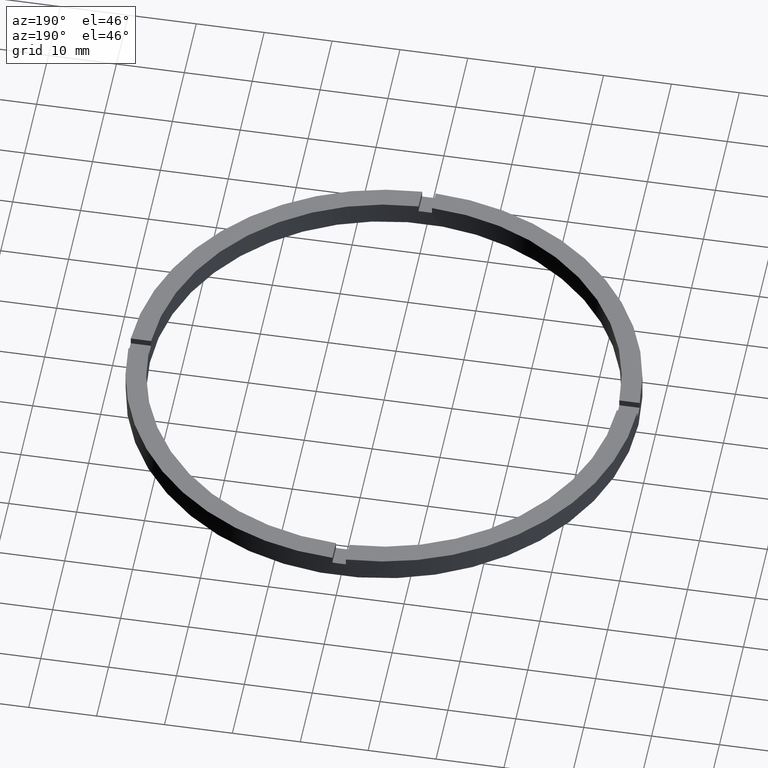
[diagram: clean part render]
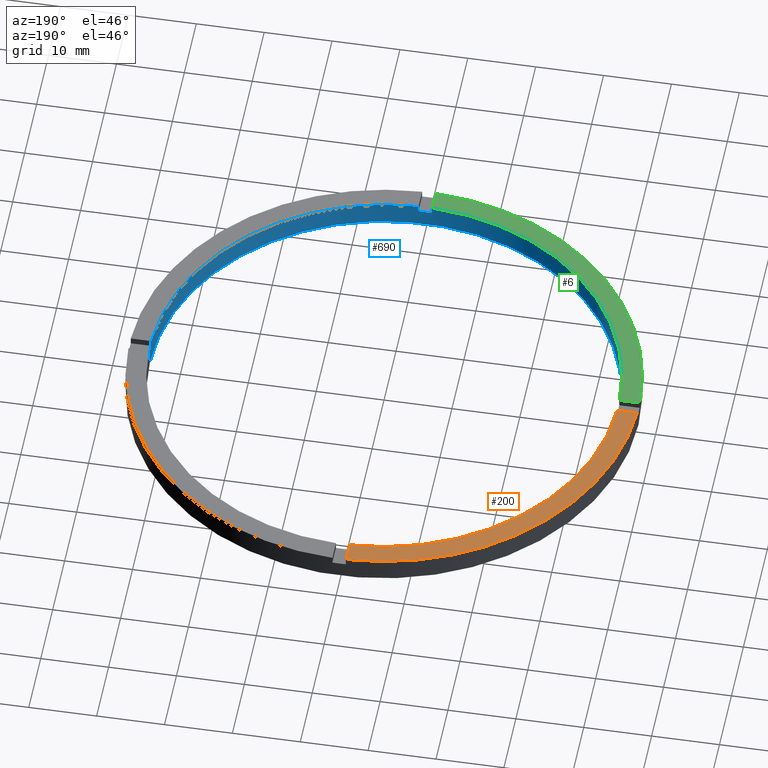
[diagram: same view with three faces highlighted in distinct colors, each labeled with its STEP entity id]
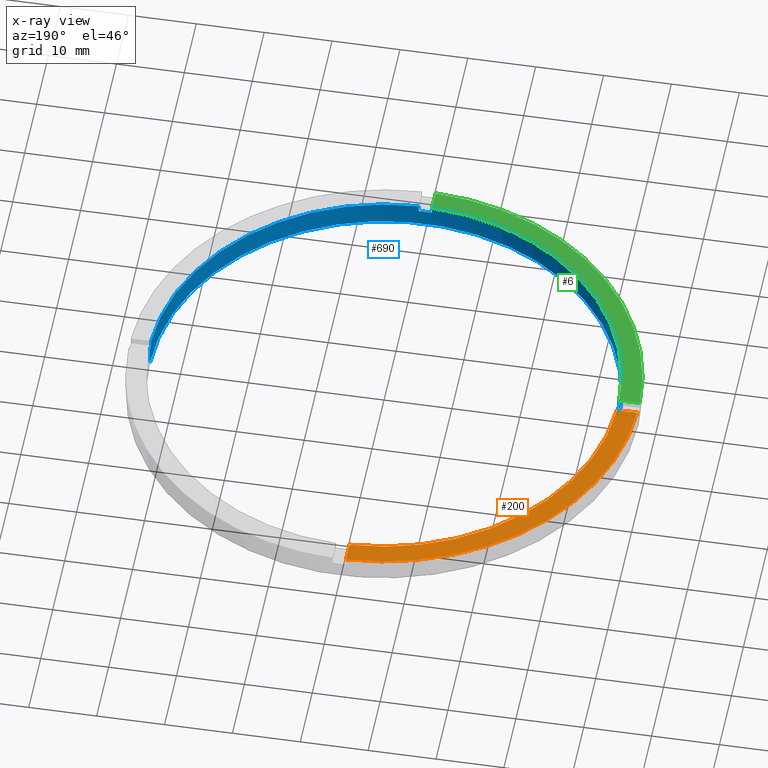
[diagram: x-ray of the same camera — body ghosted, the three highlighted faces saturated]
A machine part, auxiliary view with three faces highlighted in distinct colors.
The next image is the same camera in x-ray (body ghosted, the three faces saturated) — at least one of them is partly hidden behind the body in this view.
Their STEP definitions:

[orange] entity #200 — the highlighted planar face has unit normal (0, 0, 1).
#54 = VECTOR ( 'NONE', #67, 1000.000000000000000 ) ;
#67 = DIRECTION ( 'NONE',  ( -0.000000000000000000, -1.000000000000000000, -0.000000000000000000 ) ) ;
#82 = EDGE_CURVE ( 'NONE', #510, #342, #322, .T. ) ;
#90 = CARTESIAN_POINT ( 'NONE',  ( -1.000000000000025313, 37.48666429545312440, 3.500000000000000000 ) ) ;
#100 = FACE_OUTER_BOUND ( 'NONE', #405, .T. ) ;
#121 = DIRECTION ( 'NONE',  ( 1.000000000000000000, 0.000000000000000000, 0.000000000000000000 ) ) ;
#128 = VERTEX_POINT ( 'NONE', #396 ) ;
#174 = ORIENTED_EDGE ( 'NONE', *, *, #550, .F. ) ;
#187 = CARTESIAN_POINT ( 'NONE',  ( -27.50000000000019185, 0.9999999999999744649, 3.500000000000000000 ) ) ;
#200 = ADVANCED_FACE ( 'NONE', ( #100 ), #378, .T. ) ;
#205 = AXIS2_PLACEMENT_3D ( 'NONE', #573, #413, #121 ) ;
#238 = CARTESIAN_POINT ( 'NONE',  ( 0.000000000000000000, 0.000000000000000000, 3.500000000000000000 ) ) ;
#278 = CIRCLE ( 'NONE', #692, 37.50000000000000711 ) ;
#288 = LINE ( 'NONE', #187, #296 ) ;
#296 = VECTOR ( 'NONE', #477, 1000.000000000000000 ) ;
#321 = ORIENTED_EDGE ( 'NONE', *, *, #714, .F. ) ;
#322 = LINE ( 'NONE', #566, #54 ) ;
#342 = VERTEX_POINT ( 'NONE', #429 ) ;
#362 = CIRCLE ( 'NONE', #205, 34.49999999999999289 ) ;
#378 = PLANE ( 'NONE',  #480 ) ;
#396 = CARTESIAN_POINT ( 'NONE',  ( -37.48666429545313150, 0.9999999999999724665, 3.500000000000000000 ) ) ;
#405 = EDGE_LOOP ( 'NONE', ( #489, #418, #174, #321 ) ) ;
#413 = DIRECTION ( 'NONE',  ( 0.000000000000000000, 0.000000000000000000, 1.000000000000000000 ) ) ;
#418 = ORIENTED_EDGE ( 'NONE', *, *, #463, .T. ) ;
#429 = CARTESIAN_POINT ( 'NONE',  ( -1.000000000000025313, 34.48550420104075442, 3.500000000000000000 ) ) ;
#432 = CARTESIAN_POINT ( 'NONE',  ( -34.48550420104076153, 0.9999999999999731326, 3.500000000000000000 ) ) ;
#457 = DIRECTION ( 'NONE',  ( 1.000000000000000000, 0.000000000000000000, 0.000000000000000000 ) ) ;
#463 = EDGE_CURVE ( 'NONE', #510, #128, #278, .T. ) ;
#477 = DIRECTION ( 'NONE',  ( -1.000000000000000000, -1.951563910473907735E-16, 0.000000000000000000 ) ) ;
#480 = AXIS2_PLACEMENT_3D ( 'NONE', #666, #767, #763 ) ;
#489 = ORIENTED_EDGE ( 'NONE', *, *, #82, .F. ) ;
#491 = VERTEX_POINT ( 'NONE', #432 ) ;
#510 = VERTEX_POINT ( 'NONE', #90 ) ;
#550 = EDGE_CURVE ( 'NONE', #491, #128, #288, .T. ) ;
#564 = DIRECTION ( 'NONE',  ( 0.000000000000000000, 0.000000000000000000, 1.000000000000000000 ) ) ;
#566 = CARTESIAN_POINT ( 'NONE',  ( -1.000000000000025313, 27.50000000000000355, 3.500000000000000000 ) ) ;
#573 = CARTESIAN_POINT ( 'NONE',  ( 0.000000000000000000, 0.000000000000000000, 3.500000000000000000 ) ) ;
#666 = CARTESIAN_POINT ( 'NONE',  ( 0.000000000000000000, 0.000000000000000000, 3.500000000000000000 ) ) ;
#692 = AXIS2_PLACEMENT_3D ( 'NONE', #238, #564, #457 ) ;
#714 = EDGE_CURVE ( 'NONE', #342, #491, #362, .T. ) ;
#763 = DIRECTION ( 'NONE',  ( 1.000000000000000000, 0.000000000000000000, -0.000000000000000000 ) ) ;
#767 = DIRECTION ( 'NONE',  ( 0.000000000000000000, 0.000000000000000000, 1.000000000000000000 ) ) ;

[blue] entity #690 — the highlighted cylindrical surface (partial cylindrical patch) has radius 34.5 mm, axis along (-0, -0, -1).
#10 = CIRCLE ( 'NONE', #768, 34.49999999999999289 ) ;
#14 = CIRCLE ( 'NONE', #421, 34.49999999999999289 ) ;
#19 = CARTESIAN_POINT ( 'NONE',  ( 0.9999999999998397948, -34.48550420104076153, 3.500000000000000000 ) ) ;
#21 = CARTESIAN_POINT ( 'NONE',  ( -1.000000000000160316, -34.48550420104075442, 3.500000000000000000 ) ) ;
#30 = CARTESIAN_POINT ( 'NONE',  ( 0.000000000000000000, 0.000000000000000000, 3.500000000000000000 ) ) ;
#36 = EDGE_CURVE ( 'NONE', #760, #422, #591, .T. ) ;
#38 = CARTESIAN_POINT ( 'NONE',  ( 34.48550420104075442, -1.000000000000157652, 2.500000000000000000 ) ) ;
#40 = EDGE_CURVE ( 'NONE', #493, #231, #58, .T. ) ;
#48 = AXIS2_PLACEMENT_3D ( 'NONE', #709, #285, #222 ) ;
#52 = CARTESIAN_POINT ( 'NONE',  ( 0.000000000000000000, 0.000000000000000000, 2.500000000000000000 ) ) ;
#53 = VECTOR ( 'NONE', #619, 1000.000000000000000 ) ;
#57 = CARTESIAN_POINT ( 'NONE',  ( 34.48550420104075442, -1.000000000000157652, 3.500000000000000000 ) ) ;
#58 = LINE ( 'NONE', #397, #53 ) ;
#63 = ORIENTED_EDGE ( 'NONE', *, *, #696, .T. ) ;
#69 = ORIENTED_EDGE ( 'NONE', *, *, #188, .T. ) ;
#70 = FACE_OUTER_BOUND ( 'NONE', #420, .T. ) ;
#71 = VERTEX_POINT ( 'NONE', #195 ) ;
#73 = CARTESIAN_POINT ( 'NONE',  ( 0.000000000000000000, 0.000000000000000000, 2.500000000000000000 ) ) ;
#83 = CYLINDRICAL_SURFACE ( 'NONE', #274, 34.49999999999999289 ) ;
#97 = LINE ( 'NONE', #21, #360 ) ;
#109 = LINE ( 'NONE', #179, #368 ) ;
#110 = AXIS2_PLACEMENT_3D ( 'NONE', #73, #503, #752 ) ;
#111 = VECTOR ( 'NONE', #612, 1000.000000000000000 ) ;
#145 = CARTESIAN_POINT ( 'NONE',  ( -34.48550420104075442, -1.000000000000026867, 3.500000000000000000 ) ) ;
#154 = VERTEX_POINT ( 'NONE', #305 ) ;
#156 = DIRECTION ( 'NONE',  ( 0.000000000000000000, 0.000000000000000000, 1.000000000000000000 ) ) ;
#158 = ORIENTED_EDGE ( 'NONE', *, *, #513, .F. ) ;
#162 = DIRECTION ( 'NONE',  ( -0.000000000000000000, -0.000000000000000000, -1.000000000000000000 ) ) ;
#179 = CARTESIAN_POINT ( 'NONE',  ( 34.48550420104075442, -1.000000000000157652, 3.500000000000000000 ) ) ;
#185 = CARTESIAN_POINT ( 'NONE',  ( 0.000000000000000000, 0.000000000000000000, 0.000000000000000000 ) ) ;
#188 = EDGE_CURVE ( 'NONE', #730, #71, #626, .T. ) ;
#195 = CARTESIAN_POINT ( 'NONE',  ( 0.9999999999998397948, -34.48550420104076153, 2.500000000000000000 ) ) ;
#204 = CARTESIAN_POINT ( 'NONE',  ( 0.000000000000000000, 0.000000000000000000, 3.500000000000000000 ) ) ;
#206 = DIRECTION ( 'NONE',  ( 1.000000000000000000, 0.000000000000000000, 0.000000000000000000 ) ) ;
#222 = DIRECTION ( 'NONE',  ( 1.000000000000000000, 0.000000000000000000, 0.000000000000000000 ) ) ;
#225 = EDGE_CURVE ( 'NONE', #754, #493, #275, .T. ) ;
#226 = ORIENTED_EDGE ( 'NONE', *, *, #583, .F. ) ;
#231 = VERTEX_POINT ( 'NONE', #652 ) ;
#259 = CARTESIAN_POINT ( 'NONE',  ( 0.9999999999998397948, -34.48550420104076153, 3.500000000000000000 ) ) ;
#260 = VECTOR ( 'NONE', #162, 1000.000000000000000 ) ;
#265 = CARTESIAN_POINT ( 'NONE',  ( -34.49999999999999289, 0.000000000000000000, 0.000000000000000000 ) ) ;
#270 = CIRCLE ( 'NONE', #317, 34.49999999999999289 ) ;
#274 = AXIS2_PLACEMENT_3D ( 'NONE', #782, #688, #395 ) ;
#275 = CIRCLE ( 'NONE', #702, 34.49999999999999289 ) ;
#279 = DIRECTION ( 'NONE',  ( 0.000000000000000000, 0.000000000000000000, 1.000000000000000000 ) ) ;
#285 = DIRECTION ( 'NONE',  ( -0.000000000000000000, 0.000000000000000000, 1.000000000000000000 ) ) ;
#287 = CARTESIAN_POINT ( 'NONE',  ( 34.49999999999999289, 4.225031457058367344E-15, 2.500000000000000000 ) ) ;
#297 = EDGE_CURVE ( 'NONE', #760, #154, #10, .T. ) ;
#305 = CARTESIAN_POINT ( 'NONE',  ( -1.000000000000160316, -34.48550420104075442, 3.500000000000000000 ) ) ;
#314 = ORIENTED_EDGE ( 'NONE', *, *, #388, .T. ) ;
#317 = AXIS2_PLACEMENT_3D ( 'NONE', #30, #697, #206 ) ;
#360 = VECTOR ( 'NONE', #279, 1000.000000000000000 ) ;
#368 = VECTOR ( 'NONE', #483, 1000.000000000000000 ) ;
#388 = EDGE_CURVE ( 'NONE', #515, #653, #270, .T. ) ;
#395 = DIRECTION ( 'NONE',  ( -1.000000000000000000, 0.000000000000000000, 0.000000000000000000 ) ) ;
#397 = CARTESIAN_POINT ( 'NONE',  ( 34.49999999999999289, 4.225031457058367344E-15, 3.500000000000000000 ) ) ;
#420 = EDGE_LOOP ( 'NONE', ( #751, #670, #729, #604, #63, #678, #504, #442, #69, #158, #314, #226 ) ) ;
#421 = AXIS2_PLACEMENT_3D ( 'NONE', #185, #671, #707 ) ;
#422 = VERTEX_POINT ( 'NONE', #744 ) ;
#442 = ORIENTED_EDGE ( 'NONE', *, *, #710, .F. ) ;
#445 = DIRECTION ( 'NONE',  ( 0.000000000000000000, 0.000000000000000000, 1.000000000000000000 ) ) ;
#456 = EDGE_CURVE ( 'NONE', #496, #231, #14, .T. ) ;
#472 = CARTESIAN_POINT ( 'NONE',  ( -1.000000000000160316, -34.48550420104075442, 2.500000000000000000 ) ) ;
#483 = DIRECTION ( 'NONE',  ( 0.000000000000000000, 0.000000000000000000, 1.000000000000000000 ) ) ;
#485 = DIRECTION ( 'NONE',  ( 1.000000000000000000, 0.000000000000000000, 0.000000000000000000 ) ) ;
#493 = VERTEX_POINT ( 'NONE', #287 ) ;
#496 = VERTEX_POINT ( 'NONE', #265 ) ;
#503 = DIRECTION ( 'NONE',  ( 0.000000000000000000, 0.000000000000000000, 1.000000000000000000 ) ) ;
#504 = ORIENTED_EDGE ( 'NONE', *, *, #297, .T. ) ;
#513 = EDGE_CURVE ( 'NONE', #515, #71, #535, .T. ) ;
#515 = VERTEX_POINT ( 'NONE', #259 ) ;
#517 = CARTESIAN_POINT ( 'NONE',  ( -34.48550420104075442, -1.000000000000026867, 3.500000000000000000 ) ) ;
#535 = LINE ( 'NONE', #19, #260 ) ;
#556 = DIRECTION ( 'NONE',  ( -0.000000000000000000, -0.000000000000000000, -1.000000000000000000 ) ) ;
#576 = VERTEX_POINT ( 'NONE', #757 ) ;
#580 = DIRECTION ( 'NONE',  ( 1.000000000000000000, 0.000000000000000000, 0.000000000000000000 ) ) ;
#582 = VECTOR ( 'NONE', #556, 1000.000000000000000 ) ;
#583 = EDGE_CURVE ( 'NONE', #754, #653, #109, .T. ) ;
#587 = EDGE_CURVE ( 'NONE', #576, #496, #622, .T. ) ;
#591 = LINE ( 'NONE', #145, #582 ) ;
#604 = ORIENTED_EDGE ( 'NONE', *, *, #587, .F. ) ;
#612 = DIRECTION ( 'NONE',  ( -0.000000000000000000, -0.000000000000000000, -1.000000000000000000 ) ) ;
#616 = CIRCLE ( 'NONE', #110, 34.49999999999999289 ) ;
#619 = DIRECTION ( 'NONE',  ( -0.000000000000000000, -0.000000000000000000, -1.000000000000000000 ) ) ;
#622 = LINE ( 'NONE', #769, #111 ) ;
#626 = CIRCLE ( 'NONE', #48, 34.49999999999999289 ) ;
#652 = CARTESIAN_POINT ( 'NONE',  ( 34.49999999999999289, 4.225031457058367344E-15, 0.000000000000000000 ) ) ;
#653 = VERTEX_POINT ( 'NONE', #57 ) ;
#670 = ORIENTED_EDGE ( 'NONE', *, *, #40, .T. ) ;
#671 = DIRECTION ( 'NONE',  ( 0.000000000000000000, 0.000000000000000000, 1.000000000000000000 ) ) ;
#678 = ORIENTED_EDGE ( 'NONE', *, *, #36, .F. ) ;
#688 = DIRECTION ( 'NONE',  ( -0.000000000000000000, -0.000000000000000000, -1.000000000000000000 ) ) ;
#690 = ADVANCED_FACE ( 'NONE', ( #70 ), #83, .F. ) ;
#696 = EDGE_CURVE ( 'NONE', #576, #422, #616, .T. ) ;
#697 = DIRECTION ( 'NONE',  ( 0.000000000000000000, 0.000000000000000000, 1.000000000000000000 ) ) ;
#702 = AXIS2_PLACEMENT_3D ( 'NONE', #52, #445, #485 ) ;
#707 = DIRECTION ( 'NONE',  ( 1.000000000000000000, 0.000000000000000000, 0.000000000000000000 ) ) ;
#709 = CARTESIAN_POINT ( 'NONE',  ( 0.000000000000000000, 0.000000000000000000, 2.500000000000000000 ) ) ;
#710 = EDGE_CURVE ( 'NONE', #730, #154, #97, .T. ) ;
#729 = ORIENTED_EDGE ( 'NONE', *, *, #456, .F. ) ;
#730 = VERTEX_POINT ( 'NONE', #472 ) ;
#744 = CARTESIAN_POINT ( 'NONE',  ( -34.48550420104075442, -1.000000000000026867, 2.500000000000000000 ) ) ;
#751 = ORIENTED_EDGE ( 'NONE', *, *, #225, .T. ) ;
#752 = DIRECTION ( 'NONE',  ( 1.000000000000000000, 0.000000000000000000, 0.000000000000000000 ) ) ;
#754 = VERTEX_POINT ( 'NONE', #38 ) ;
#757 = CARTESIAN_POINT ( 'NONE',  ( -34.49999999999999289, 0.000000000000000000, 2.500000000000000000 ) ) ;
#760 = VERTEX_POINT ( 'NONE', #517 ) ;
#768 = AXIS2_PLACEMENT_3D ( 'NONE', #204, #156, #580 ) ;
#769 = CARTESIAN_POINT ( 'NONE',  ( -34.49999999999999289, 0.000000000000000000, 3.500000000000000000 ) ) ;
#782 = CARTESIAN_POINT ( 'NONE',  ( 0.000000000000000000, 0.000000000000000000, 3.500000000000000000 ) ) ;

[green] entity #6 — the highlighted planar face has unit normal (0, 0, 1).
#6 = ADVANCED_FACE ( 'NONE', ( #79 ), #243, .T. ) ;
#10 = CIRCLE ( 'NONE', #768, 34.49999999999999289 ) ;
#65 = ORIENTED_EDGE ( 'NONE', *, *, #661, .F. ) ;
#79 = FACE_OUTER_BOUND ( 'NONE', #152, .T. ) ;
#85 = CARTESIAN_POINT ( 'NONE',  ( 0.000000000000000000, 0.000000000000000000, 3.500000000000000000 ) ) ;
#116 = VECTOR ( 'NONE', #134, 1000.000000000000000 ) ;
#134 = DIRECTION ( 'NONE',  ( 1.000000000000000000, 1.951563910473907735E-16, -0.000000000000000000 ) ) ;
#152 = EDGE_LOOP ( 'NONE', ( #502, #224, #65, #740 ) ) ;
#154 = VERTEX_POINT ( 'NONE', #305 ) ;
#156 = DIRECTION ( 'NONE',  ( 0.000000000000000000, 0.000000000000000000, 1.000000000000000000 ) ) ;
#184 = CARTESIAN_POINT ( 'NONE',  ( -1.000000000000161204, -27.50000000000018474, 3.500000000000000000 ) ) ;
#197 = AXIS2_PLACEMENT_3D ( 'NONE', #306, #453, #720 ) ;
#204 = CARTESIAN_POINT ( 'NONE',  ( 0.000000000000000000, 0.000000000000000000, 3.500000000000000000 ) ) ;
#224 = ORIENTED_EDGE ( 'NONE', *, *, #297, .F. ) ;
#240 = DIRECTION ( 'NONE',  ( 1.301042606982605074E-16, -1.000000000000000000, 0.000000000000000000 ) ) ;
#243 = PLANE ( 'NONE',  #197 ) ;
#266 = LINE ( 'NONE', #184, #284 ) ;
#272 = DIRECTION ( 'NONE',  ( 0.000000000000000000, 0.000000000000000000, 1.000000000000000000 ) ) ;
#284 = VECTOR ( 'NONE', #240, 1000.000000000000000 ) ;
#286 = EDGE_CURVE ( 'NONE', #682, #409, #539, .T. ) ;
#297 = EDGE_CURVE ( 'NONE', #760, #154, #10, .T. ) ;
#305 = CARTESIAN_POINT ( 'NONE',  ( -1.000000000000160316, -34.48550420104075442, 3.500000000000000000 ) ) ;
#306 = CARTESIAN_POINT ( 'NONE',  ( 0.000000000000000000, 0.000000000000000000, 3.500000000000000000 ) ) ;
#311 = CARTESIAN_POINT ( 'NONE',  ( -27.50000000000019185, -1.000000000000025535, 3.500000000000000000 ) ) ;
#341 = LINE ( 'NONE', #311, #116 ) ;
#409 = VERTEX_POINT ( 'NONE', #581 ) ;
#453 = DIRECTION ( 'NONE',  ( 0.000000000000000000, 0.000000000000000000, 1.000000000000000000 ) ) ;
#502 = ORIENTED_EDGE ( 'NONE', *, *, #531, .F. ) ;
#505 = DIRECTION ( 'NONE',  ( 1.000000000000000000, 0.000000000000000000, 0.000000000000000000 ) ) ;
#517 = CARTESIAN_POINT ( 'NONE',  ( -34.48550420104075442, -1.000000000000026867, 3.500000000000000000 ) ) ;
#529 = AXIS2_PLACEMENT_3D ( 'NONE', #85, #272, #505 ) ;
#531 = EDGE_CURVE ( 'NONE', #154, #409, #266, .T. ) ;
#539 = CIRCLE ( 'NONE', #529, 37.50000000000000711 ) ;
#580 = DIRECTION ( 'NONE',  ( 1.000000000000000000, 0.000000000000000000, 0.000000000000000000 ) ) ;
#581 = CARTESIAN_POINT ( 'NONE',  ( -1.000000000000160094, -37.48666429545312440, 3.500000000000000000 ) ) ;
#625 = CARTESIAN_POINT ( 'NONE',  ( -37.48666429545312440, -1.000000000000027534, 3.500000000000000000 ) ) ;
#661 = EDGE_CURVE ( 'NONE', #682, #760, #341, .T. ) ;
#682 = VERTEX_POINT ( 'NONE', #625 ) ;
#720 = DIRECTION ( 'NONE',  ( 1.000000000000000000, 0.000000000000000000, -0.000000000000000000 ) ) ;
#740 = ORIENTED_EDGE ( 'NONE', *, *, #286, .T. ) ;
#760 = VERTEX_POINT ( 'NONE', #517 ) ;
#768 = AXIS2_PLACEMENT_3D ( 'NONE', #204, #156, #580 ) ;